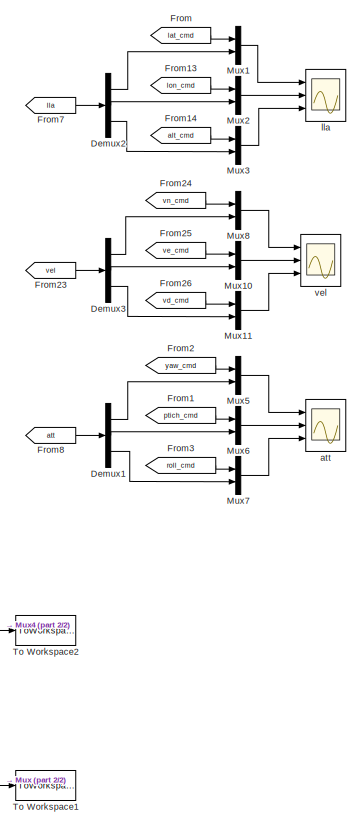
[diagram: root canvas - part 1/2, right side, full height]
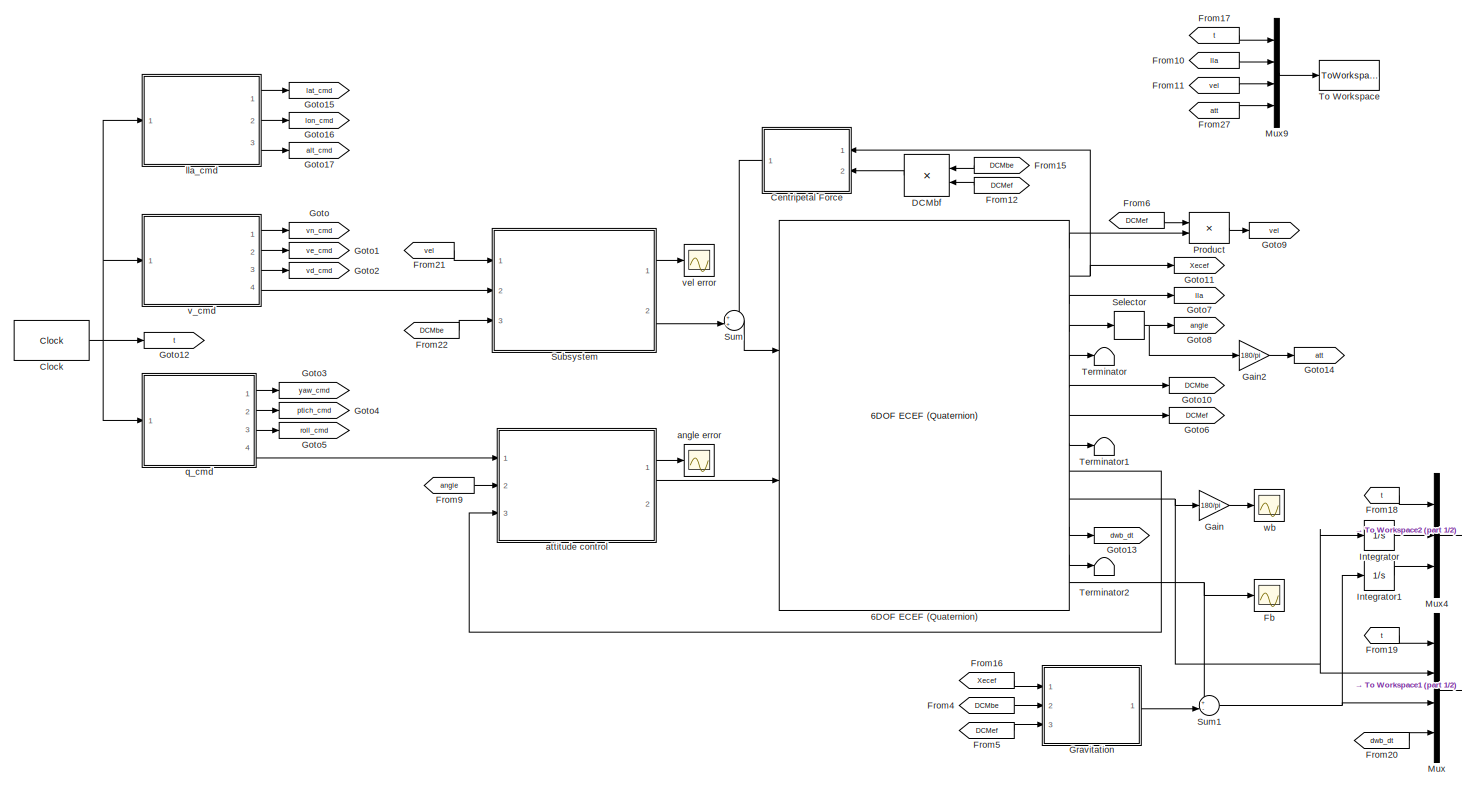
[diagram: root canvas - part 2/2, most of the canvas]
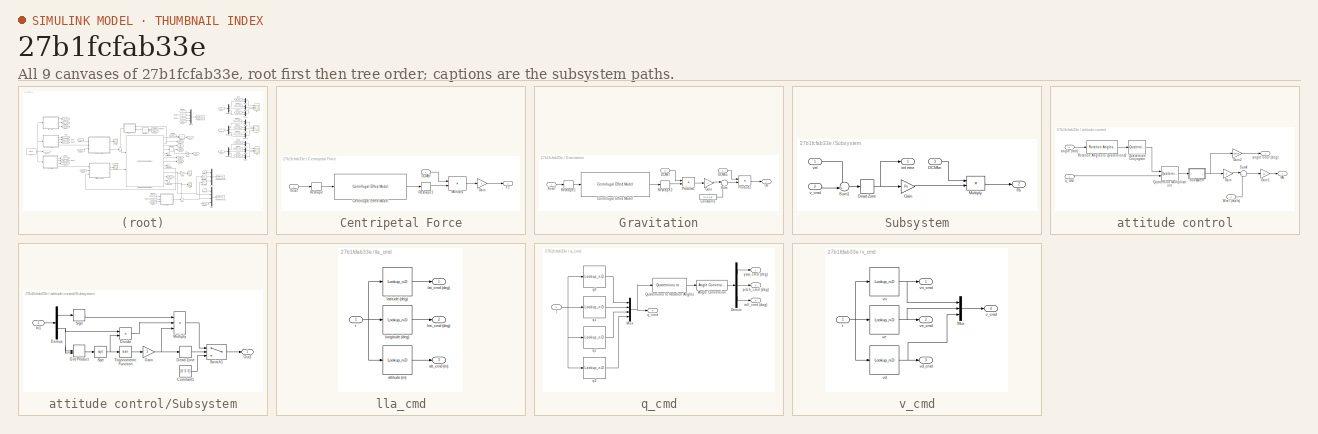
[diagram: thumbnail index - all 9 canvases of the model, root first then tree order]
MODEL slx_27b1fcfab33e
KIND model
CONFIG AbsTol = auto
CONFIG EnableMultiTasking = off
CONFIG FixedStep = dt_solve
CONFIG MaxStep = auto
CONFIG MinStep = auto
CONFIG RelTol = 1e-3
CONFIG SampleTimeConstraint = Unconstrained
CONFIG Solver = ode4
CONFIG SolverName = ode4
CONFIG StartTime = 0.0
CONFIG StopFcn = for k=2:size(imu_delta,1)\nimu_delta(k-1,2:7) = imu_delta(k,2:7)-imu_delta(k-1,2:7);\nend\nimu_delta(1:end-1,1) = imu_delta(2:end,1);\nimu_delta(end,:) = [];\nclearvars k\nsave([path,'/traj.mat'], 'traj_m','imu_rate','imu_delta');
CONFIG StopTime = floor(cmd(end,1))
BLOCK [Reference] 6DOF ECEF (Quaternion)  REF=aerolib6dof2/6DOF ECEF (Quaternion)
  Ports = [2, 13]
  SourceBlock = aerolib6dof2/6DOF ECEF (Quaternion)
  SourceProductBaseCode = AE
  SourceProductName = Aerospace Blockset
  SourceType = 6DOF EoM (ECEF)
BLOCK [SubSystem] Centripetal Force
  Ports = [2, 1]
  RequestExecContextInheritance = off
BLOCK [Reference] Centripetal Force/Centrifugal Effect Model  REF=aerolibgravity2/Centrifugal Effect Model
  Ports = [1, 1]
  SourceBlock = aerolibgravity2/Centrifugal Effect Model
  SourceProductBaseCode = AE
  SourceProductName = Aerospace Blockset
  SourceType = Centrifugal Effect Model
BLOCK [Inport] Centripetal Force/DCMbf
  IconDisplay = Port number
  Port = 2
BLOCK [Outport] Centripetal Force/Fc
  IconDisplay = Port number
BLOCK [Gain] Centripetal Force/Gain
  Gain = -1
  OutDataTypeStr = Inherit: Inherit via internal rule
  ParamDataTypeStr = Inherit: Inherit via internal rule
  SaturateOnIntegerOverflow = off
BLOCK [Product] Centripetal Force/Multiply
  InputSameDT = off
  Multiplication = Matrix(*)
  OutDataTypeStr = Inherit: Inherit via internal rule
  Ports = [2, 1]
  RndMeth = Floor
  SaturateOnIntegerOverflow = off
BLOCK [Reshape] Centripetal Force/Reshape
  Ports = [1, 1]
BLOCK [Reshape] Centripetal Force/Reshape1
  Ports = [1, 1]
BLOCK [Inport] Centripetal Force/Xecef
  IconDisplay = Port number
BLOCK [Clock] Clock
  Decimation = 1
  DisplayTime = on
BLOCK [Product] DCMbf
  InputSameDT = off
  Multiplication = Matrix(*)
  OutDataTypeStr = Inherit: Inherit via internal rule
  Ports = [2, 1]
  RndMeth = Floor
  SaturateOnIntegerOverflow = off
BLOCK [Demux] Demux1
  DisplayOption = bar
  Outputs = 3
  Ports = [1, 3]
BLOCK [Demux] Demux2
  DisplayOption = bar
  Outputs = 3
  Ports = [1, 3]
BLOCK [Demux] Demux3
  DisplayOption = bar
  Outputs = 3
  Ports = [1, 3]
BLOCK [Scope] Fb
  Floating = off
  NumInputPorts = 1
  Ports = [1]
  ScopeSpecificationString = Simulink.scopes.TimeScopeBlockCfg('CurrentConfiguration', extmgr.ConfigurationSet(extmgr.Configuration('Core','General UI',true),extmgr.Configuration('Core','Source UI',true),extmgr.Configuration('Sources','WiredSimulink',true,'SampleTime','dt_scope','DataLoggingVariableName','ScopeData3'),extmgr.Configuration('Visuals','Time Domain',true,'SerializedDisplays',{struct('MinYLimReal','-17.9104','MaxY...<+1547ch>
BLOCK [From] From
  GotoTag = lat_cmd
BLOCK [From] From1
  GotoTag = ptich_cmd
BLOCK [From] From10
  GotoTag = lla
BLOCK [From] From11
  GotoTag = vel
BLOCK [From] From12
  GotoTag = DCMef
BLOCK [From] From13
  GotoTag = lon_cmd
BLOCK [From] From14
  GotoTag = alt_cmd
BLOCK [From] From15
  GotoTag = DCMbe
BLOCK [From] From16
  GotoTag = Xecef
BLOCK [From] From17
  GotoTag = t
BLOCK [From] From18
  GotoTag = t
BLOCK [From] From19
  GotoTag = t
BLOCK [From] From2
  GotoTag = yaw_cmd
BLOCK [From] From20
  GotoTag = dwb_dt
BLOCK [From] From21
  GotoTag = vel
BLOCK [From] From22
  GotoTag = DCMbe
BLOCK [From] From23
  GotoTag = vel
BLOCK [From] From24
  GotoTag = vn_cmd
BLOCK [From] From25
  GotoTag = ve_cmd
BLOCK [From] From26
  GotoTag = vd_cmd
BLOCK [From] From27
  GotoTag = att
BLOCK [From] From3
  GotoTag = roll_cmd
BLOCK [From] From4
  GotoTag = DCMbe
BLOCK [From] From5
  GotoTag = DCMef
BLOCK [From] From6
  GotoTag = DCMef
BLOCK [From] From7
  GotoTag = lla
BLOCK [From] From8
  GotoTag = att
BLOCK [From] From9
  GotoTag = angle
BLOCK [Gain] Gain
  Gain = 180/pi
  OutDataTypeStr = Inherit: Inherit via internal rule
  ParamDataTypeStr = Inherit: Inherit via internal rule
  SaturateOnIntegerOverflow = off
BLOCK [Gain] Gain2
  Gain = 180/pi
  OutDataTypeStr = Inherit: Inherit via internal rule
  ParamDataTypeStr = Inherit: Inherit via internal rule
  SaturateOnIntegerOverflow = off
BLOCK [Goto] Goto
  GotoTag = vn_cmd
BLOCK [Goto] Goto1
  GotoTag = ve_cmd
BLOCK [Goto] Goto10
  GotoTag = DCMbe
BLOCK [Goto] Goto11
  GotoTag = Xecef
BLOCK [Goto] Goto12
  GotoTag = t
BLOCK [Goto] Goto13
  GotoTag = dwb_dt
BLOCK [Goto] Goto14
  GotoTag = att
BLOCK [Goto] Goto15
  GotoTag = lat_cmd
BLOCK [Goto] Goto16
  GotoTag = lon_cmd
BLOCK [Goto] Goto17
  GotoTag = alt_cmd
BLOCK [Goto] Goto2
  GotoTag = vd_cmd
BLOCK [Goto] Goto3
  GotoTag = yaw_cmd
BLOCK [Goto] Goto4
  GotoTag = ptich_cmd
BLOCK [Goto] Goto5
  GotoTag = roll_cmd
BLOCK [Goto] Goto6
  GotoTag = DCMef
BLOCK [Goto] Goto7
  GotoTag = lla
BLOCK [Goto] Goto8
  GotoTag = angle
BLOCK [Goto] Goto9
  GotoTag = vel
BLOCK [SubSystem] Gravitation
  Ports = [3, 1]
  RequestExecContextInheritance = off
BLOCK [Reference] Gravitation/Centrifugal Effect Model  REF=aerolibgravity2/Centrifugal Effect Model
  Ports = [1, 1]
  SourceBlock = aerolibgravity2/Centrifugal Effect Model
  SourceProductBaseCode = AE
  SourceProductName = Aerospace Blockset
  SourceType = Centrifugal Effect Model
BLOCK [Constant] Gravitation/Constant3
  Value = [0 0 9.8]
BLOCK [Inport] Gravitation/DCMbe
  IconDisplay = Port number
  Port = 2
BLOCK [Inport] Gravitation/DCMef
  IconDisplay = Port number
  Port = 3
BLOCK [Gain] Gravitation/Gain
  Gain = -1
  OutDataTypeStr = Inherit: Inherit via internal rule
  ParamDataTypeStr = Inherit: Inherit via internal rule
  SaturateOnIntegerOverflow = off
BLOCK [Outport] Gravitation/Gb
  IconDisplay = Port number
BLOCK [Product] Gravitation/Product1
  InputSameDT = off
  Multiplication = Matrix(*)
  OutDataTypeStr = Inherit: Inherit via internal rule
  Ports = [2, 1]
  RndMeth = Floor
  SaturateOnIntegerOverflow = off
BLOCK [Product] Gravitation/Product2
  InputSameDT = off
  Multiplication = Matrix(*)
  OutDataTypeStr = Inherit: Inherit via internal rule
  Ports = [2, 1]
  RndMeth = Floor
  SaturateOnIntegerOverflow = off
BLOCK [Reshape] Gravitation/Reshape1
  Ports = [1, 1]
BLOCK [Reshape] Gravitation/Reshape2
  Ports = [1, 1]
BLOCK [Sum] Gravitation/Sum
  IconShape = round
  InputSameDT = off
  Inputs = |++
  OutDataTypeStr = Inherit: Inherit via internal rule
  Ports = [2, 1]
  SaturateOnIntegerOverflow = off
BLOCK [Inport] Gravitation/Xecef
  IconDisplay = Port number
BLOCK [Integrator] Integrator
  Ports = [1, 1]
BLOCK [Integrator] Integrator1
  Ports = [1, 1]
BLOCK [Mux] Mux
  DisplayOption = bar
  Ports = [4, 1]
BLOCK [Mux] Mux1
  DisplayOption = bar
  Inputs = 2
  Ports = [2, 1]
BLOCK [Mux] Mux10
  DisplayOption = bar
  Inputs = 2
  Ports = [2, 1]
BLOCK [Mux] Mux11
  DisplayOption = bar
  Inputs = 2
  Ports = [2, 1]
BLOCK [Mux] Mux2
  DisplayOption = bar
  Inputs = 2
  Ports = [2, 1]
BLOCK [Mux] Mux3
  DisplayOption = bar
  Inputs = 2
  Ports = [2, 1]
BLOCK [Mux] Mux4
  DisplayOption = bar
  Inputs = 3
  Ports = [3, 1]
BLOCK [Mux] Mux5
  DisplayOption = bar
  Inputs = 2
  Ports = [2, 1]
BLOCK [Mux] Mux6
  DisplayOption = bar
  Inputs = 2
  Ports = [2, 1]
BLOCK [Mux] Mux7
  DisplayOption = bar
  Inputs = 2
  Ports = [2, 1]
BLOCK [Mux] Mux8
  DisplayOption = bar
  Inputs = 2
  Ports = [2, 1]
BLOCK [Mux] Mux9
  DisplayOption = bar
  Ports = [4, 1]
BLOCK [Product] Product
  InputSameDT = off
  Multiplication = Matrix(*)
  OutDataTypeStr = Inherit: Inherit via internal rule
  Ports = [2, 1]
  RndMeth = Floor
  SaturateOnIntegerOverflow = off
BLOCK [Selector] Selector
  IndexOptions = Index vector (dialog)
  Indices = [3 2 1]
  InputPortWidth = 3
  OutputSizes = 1
  Ports = [1, 1]
BLOCK [SubSystem] Subsystem
  Ports = [3, 2]
  RequestExecContextInheritance = off
BLOCK [Inport] Subsystem/DCMbe
  IconDisplay = Port number
  Port = 3
BLOCK [DeadZone] Subsystem/Dead Zone
  LowerValue = -0.02
  UpperValue = 0.02
BLOCK [Outport] Subsystem/Fb
  IconDisplay = Port number
  Port = 2
BLOCK [Gain] Subsystem/Gain
  Gain = Pv
  OutDataTypeStr = Inherit: Inherit via internal rule
  ParamDataTypeStr = Inherit: Inherit via internal rule
  SaturateOnIntegerOverflow = off
BLOCK [Product] Subsystem/Multiply
  InputSameDT = off
  Multiplication = Matrix(*)
  OutDataTypeStr = Inherit: Inherit via internal rule
  Ports = [2, 1]
  RndMeth = Floor
  SaturateOnIntegerOverflow = off
BLOCK [Sum] Subsystem/Sum1
  IconShape = round
  InputSameDT = off
  Inputs = -+|
  OutDataTypeStr = Inherit: Inherit via internal rule
  Ports = [2, 1]
  SaturateOnIntegerOverflow = off
BLOCK [Inport] Subsystem/v_cmd
  IconDisplay = Port number
  Port = 2
BLOCK [Inport] Subsystem/vel
  IconDisplay = Port number
BLOCK [Outport] Subsystem/vel error
  IconDisplay = Port number
BLOCK [Sum] Sum
  IconShape = round
  InputSameDT = off
  Inputs = ++|
  OutDataTypeStr = Inherit: Inherit via internal rule
  Ports = [2, 1]
  SaturateOnIntegerOverflow = off
BLOCK [Sum] Sum1
  IconShape = round
  InputSameDT = off
  Inputs = +-|
  OutDataTypeStr = Inherit: Inherit via internal rule
  Ports = [2, 1]
  SaturateOnIntegerOverflow = off
BLOCK [Terminator] Terminator
BLOCK [Terminator] Terminator1
BLOCK [Terminator] Terminator2
BLOCK [ToWorkspace] To Workspace
  Decimation = dt_traj/dt_solve
  FixptAsFi = on
  MaxDataPoints = inf
  Ports = [1]
  SampleTime = -1
  Save2DSignal = 3-D array (concatenate along third dimension)
  VariableName = traj_m
BLOCK [ToWorkspace] To Workspace1
  Decimation = dt_imu_rate/dt_solve
  FixptAsFi = on
  MaxDataPoints = inf
  Ports = [1]
  SampleTime = -1
  Save2DSignal = 3-D array (concatenate along third dimension)
  VariableName = imu_rate
BLOCK [ToWorkspace] To Workspace2
  Decimation = dt_imu_delta/dt_solve
  FixptAsFi = on
  MaxDataPoints = inf
  Ports = [1]
  SampleTime = -1
  Save2DSignal = 3-D array (concatenate along third dimension)
  VariableName = imu_delta
BLOCK [Scope] angle error
  Floating = off
  NumInputPorts = 1
  Ports = [1]
  ScopeSpecificationString = Simulink.scopes.TimeScopeBlockCfg('CurrentConfiguration', extmgr.ConfigurationSet(extmgr.Configuration('Core','General UI',true),extmgr.Configuration('Core','Source UI',true),extmgr.Configuration('Sources','WiredSimulink',true,'SampleTime','dt_scope','DataLoggingVariableName','ScopeData1'),extmgr.Configuration('Visuals','Time Domain',true,'SerializedDisplays',{struct('MinYLimReal','-26.31739','Max...<+1528ch>
BLOCK [Scope] att
  Floating = off
  NumInputPorts = 3
  Ports = [3]
  ScopeSpecificationString = Simulink.scopes.TimeScopeBlockCfg('CurrentConfiguration', extmgr.ConfigurationSet(extmgr.Configuration('Core','General UI',true),extmgr.Configuration('Core','Source UI',true),extmgr.Configuration('Sources','WiredSimulink',true,'DataLoggingVariableName','ScopeData1','SampleTime','dt_scope'),extmgr.Configuration('Visuals','Time Domain',true,'SerializedDisplays',{struct('MinYLimReal','-14.48356','Max...<+2789ch>
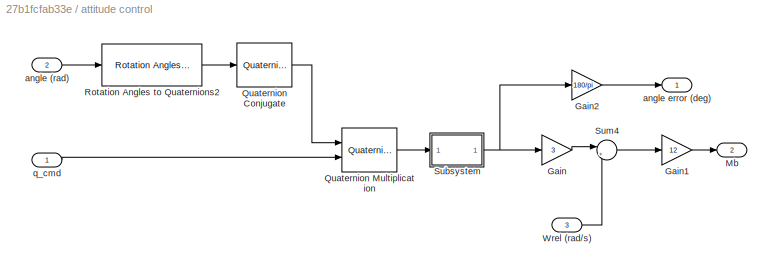
BLOCK [SubSystem] attitude control
  Ports = [3, 2]
  RequestExecContextInheritance = off
BLOCK [Gain] attitude control/Gain
  Gain = 3
  OutDataTypeStr = Inherit: Inherit via internal rule
  ParamDataTypeStr = Inherit: Inherit via internal rule
  SaturateOnIntegerOverflow = off
BLOCK [Gain] attitude control/Gain1
  Gain = 12
  OutDataTypeStr = Inherit: Inherit via internal rule
  ParamDataTypeStr = Inherit: Inherit via internal rule
  SaturateOnIntegerOverflow = off
BLOCK [Gain] attitude control/Gain2
  Gain = 180/pi
  OutDataTypeStr = Inherit: Inherit via internal rule
  ParamDataTypeStr = Inherit: Inherit via internal rule
  SaturateOnIntegerOverflow = off
BLOCK [Outport] attitude control/Mb
  IconDisplay = Port number
  Port = 2
BLOCK [Reference] attitude control/Quaternion Conjugate  REF=aerolibutil/Quaternion
Conjugate
  Ports = [1, 1]
  SourceBlock = aerolibutil/Quaternion\nConjugate
  SourceProductBaseCode = AE
  SourceProductName = Aerospace Blockset
  SourceType = Quaternion Conjugate
BLOCK [Reference] attitude control/Quaternion Multiplication  REF=aerolibutil/Quaternion
Multiplication
  Ports = [2, 1]
  SourceBlock = aerolibutil/Quaternion\nMultiplication
  SourceProductBaseCode = AE
  SourceProductName = Aerospace Blockset
  SourceType = Quaternion Multiplication
BLOCK [Reference] attitude control/Rotation Angles to Quaternions2  REF=sharedtransform/Rotation Angles to Quaternions
  AttributesFormatString = Rotation Order: %<rotationOrder>
  Ports = [1, 1]
  SourceBlock = sharedtransform/Rotation Angles to Quaternions
  SourceProductBaseCode = AE
  SourceProductName = Aerospace Blockset
  SourceType = Ang2Quat
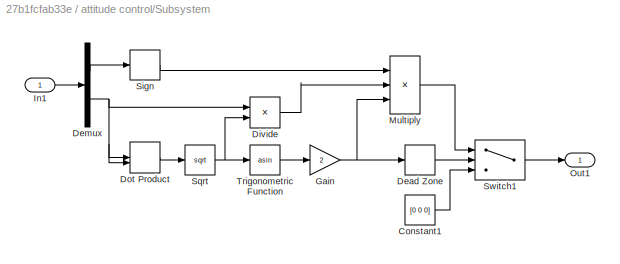
BLOCK [SubSystem] attitude control/Subsystem
  Ports = [1, 1]
  RequestExecContextInheritance = off
BLOCK [Constant] attitude control/Subsystem/Constant1
  Value = [0 0 0]
BLOCK [DeadZone] attitude control/Subsystem/Dead Zone
  LowerValue = -0.01/180*pi
  UpperValue = 0.01/180*pi
BLOCK [Demux] attitude control/Subsystem/Demux
  DisplayOption = bar
  Outputs = [1 3]
  Ports = [1, 2]
BLOCK [Product] attitude control/Subsystem/Divide
  InputSameDT = off
  Inputs = */
  OutDataTypeStr = Inherit: Inherit via internal rule
  Ports = [2, 1]
  RndMeth = Floor
  SaturateOnIntegerOverflow = off
BLOCK [DotProduct] attitude control/Subsystem/Dot Product
  OutDataTypeStr = Inherit: Inherit via internal rule
BLOCK [Gain] attitude control/Subsystem/Gain
  Gain = 2
  OutDataTypeStr = Inherit: Inherit via internal rule
  ParamDataTypeStr = Inherit: Inherit via internal rule
  SaturateOnIntegerOverflow = off
BLOCK [Inport] attitude control/Subsystem/In1
  IconDisplay = Port number
BLOCK [Product] attitude control/Subsystem/Multiply
  InputSameDT = off
  Inputs = 3
  OutDataTypeStr = Inherit: Inherit via internal rule
  Ports = [3, 1]
  RndMeth = Floor
  SaturateOnIntegerOverflow = off
BLOCK [Outport] attitude control/Subsystem/Out1
  IconDisplay = Port number
BLOCK [Signum] attitude control/Subsystem/Sign
BLOCK [Sqrt] attitude control/Subsystem/Sqrt
BLOCK [Switch] attitude control/Subsystem/Switch1
  Criteria = u2 ~= 0
  InputSameDT = off
  SaturateOnIntegerOverflow = off
BLOCK [Trigonometry] attitude control/Subsystem/Trigonometric Function
  Operator = asin
  Ports = [1, 1]
BLOCK [Sum] attitude control/Sum4
  IconShape = round
  InputSameDT = off
  Inputs = |+-
  OutDataTypeStr = Inherit: Inherit via internal rule
  Ports = [2, 1]
  SaturateOnIntegerOverflow = off
BLOCK [Inport] attitude control/Wrel (rad//s)
  IconDisplay = Port number
  Port = 3
BLOCK [Inport] attitude control/angle (rad)
  IconDisplay = Port number
  Port = 2
BLOCK [Outport] attitude control/angle error (deg)
  IconDisplay = Port number
BLOCK [Inport] attitude control/q_cmd
  IconDisplay = Port number
BLOCK [Scope] lla
  Floating = off
  NumInputPorts = 3
  Ports = [3]
  ScopeSpecificationString = Simulink.scopes.TimeScopeBlockCfg('CurrentConfiguration', extmgr.ConfigurationSet(extmgr.Configuration('Core','General UI',true),extmgr.Configuration('Core','Source UI',true),extmgr.Configuration('Sources','WiredSimulink',true,'DataLoggingVariableName','ScopeData1','SampleTime','dt_scope'),extmgr.Configuration('Visuals','Time Domain',true,'SerializedDisplays',{struct('MinYLimReal','40.01197','MaxY...<+2800ch>
BLOCK [SubSystem] lla_cmd
  Ports = [1, 3]
  RequestExecContextInheritance = off
BLOCK [Outport] lla_cmd/alt_cmd (m)
  IconDisplay = Port number
  Port = 3
BLOCK [Lookup_n-D] lla_cmd/altitude (m)
  BreakpointsForDimension1 = data(:,1)
  ExtrapMethod = Clip
  InternalRulePriority = Speed
  InterpMethod = Cubic spline
  NumberOfTableDimensions = 1
  Ports = [1, 1]
  RndMeth = Simplest
  Table = data(:,4)
BLOCK [Outport] lla_cmd/lat_cmd (deg)
  IconDisplay = Port number
BLOCK [Lookup_n-D] lla_cmd/latitude (deg)
  BreakpointsForDimension1 = data(:,1)
  ExtrapMethod = Clip
  InternalRulePriority = Speed
  InterpMethod = Cubic spline
  NumberOfTableDimensions = 1
  Ports = [1, 1]
  RndMeth = Simplest
  Table = data(:,2)
BLOCK [Outport] lla_cmd/lon_cmd (deg)
  IconDisplay = Port number
  Port = 2
BLOCK [Lookup_n-D] lla_cmd/longitude (deg)
  BreakpointsForDimension1 = data(:,1)
  ExtrapMethod = Clip
  InternalRulePriority = Speed
  InterpMethod = Cubic spline
  NumberOfTableDimensions = 1
  Ports = [1, 1]
  RndMeth = Simplest
  Table = data(:,3)
BLOCK [Inport] lla_cmd/t
  IconDisplay = Port number
BLOCK [SubSystem] q_cmd
  Ports = [1, 4]
  RequestExecContextInheritance = off
BLOCK [Reference] q_cmd/Angle Conversion  REF=aerolibconvert2/Angle Conversion
  Ports = [1, 1]
  SourceBlock = aerolibconvert2/Angle Conversion
  SourceProductBaseCode = AE
  SourceProductName = Aerospace Blockset
  SourceType = Angle Conversion
BLOCK [Demux] q_cmd/Demux
  DisplayOption = bar
  Outputs = 3
  Ports = [1, 3]
BLOCK [Mux] q_cmd/Mux
  DisplayOption = bar
  Ports = [4, 1]
BLOCK [Reference] q_cmd/Quaternions to Rotation Angles  REF=sharedtransform/Quaternions to Rotation Angles
  AttributesFormatString = Rotation Order: %<rotationOrder>
  Ports = [1, 1]
  SourceBlock = sharedtransform/Quaternions to Rotation Angles
  SourceProductBaseCode = AE
  SourceProductName = Aerospace Blockset
  SourceType = Quat2Ang
BLOCK [Outport] q_cmd/pitch_cmd (deg)
  IconDisplay = Port number
  Port = 2
BLOCK [Lookup_n-D] q_cmd/q0
  BreakpointsForDimension1 = cmd(:,1)
  ExtrapMethod = Clip
  InternalRulePriority = Speed
  InterpMethod = Cubic spline
  NumberOfTableDimensions = 1
  Ports = [1, 1]
  RndMeth = Simplest
  Table = cmd(:,5)
BLOCK [Lookup_n-D] q_cmd/q1
  BreakpointsForDimension1 = cmd(:,1)
  ExtrapMethod = Clip
  InternalRulePriority = Speed
  InterpMethod = Cubic spline
  NumberOfTableDimensions = 1
  Ports = [1, 1]
  RndMeth = Simplest
  Table = cmd(:,6)
BLOCK [Lookup_n-D] q_cmd/q2
  BreakpointsForDimension1 = cmd(:,1)
  ExtrapMethod = Clip
  InternalRulePriority = Speed
  InterpMethod = Cubic spline
  NumberOfTableDimensions = 1
  Ports = [1, 1]
  RndMeth = Simplest
  Table = cmd(:,7)
BLOCK [Lookup_n-D] q_cmd/q3
  BreakpointsForDimension1 = cmd(:,1)
  ExtrapMethod = Clip
  InternalRulePriority = Speed
  InterpMethod = Cubic spline
  NumberOfTableDimensions = 1
  Ports = [1, 1]
  RndMeth = Simplest
  Table = cmd(:,8)
BLOCK [Outport] q_cmd/q_cmd
  IconDisplay = Port number
  Port = 4
BLOCK [Outport] q_cmd/roll_cmd (deg)
  IconDisplay = Port number
  Port = 3
BLOCK [Inport] q_cmd/t
  IconDisplay = Port number
BLOCK [Outport] q_cmd/yaw_cmd (deg)
  IconDisplay = Port number
BLOCK [SubSystem] v_cmd
  Ports = [1, 4]
  RequestExecContextInheritance = off
BLOCK [Mux] v_cmd/Mux
  DisplayOption = bar
  Inputs = 3
  Ports = [3, 1]
BLOCK [Inport] v_cmd/t
  IconDisplay = Port number
BLOCK [Outport] v_cmd/v_cmd
  IconDisplay = Port number
  Port = 4
BLOCK [Lookup_n-D] v_cmd/vd
  BreakpointsForDimension1 = cmd(:,1)
  ExtrapMethod = Clip
  InternalRulePriority = Speed
  InterpMethod = Cubic spline
  NumberOfTableDimensions = 1
  Ports = [1, 1]
  RndMeth = Simplest
  Table = cmd(:,4)
BLOCK [Outport] v_cmd/vd_cmd
  IconDisplay = Port number
  Port = 3
BLOCK [Lookup_n-D] v_cmd/ve
  BreakpointsForDimension1 = cmd(:,1)
  ExtrapMethod = Clip
  InternalRulePriority = Speed
  InterpMethod = Cubic spline
  NumberOfTableDimensions = 1
  Ports = [1, 1]
  RndMeth = Simplest
  Table = cmd(:,3)
BLOCK [Outport] v_cmd/ve_cmd
  IconDisplay = Port number
  Port = 2
BLOCK [Lookup_n-D] v_cmd/vn
  BreakpointsForDimension1 = cmd(:,1)
  ExtrapMethod = Clip
  InternalRulePriority = Speed
  InterpMethod = Cubic spline
  NumberOfTableDimensions = 1
  Ports = [1, 1]
  RndMeth = Simplest
  Table = cmd(:,2)
BLOCK [Outport] v_cmd/vn_cmd
  IconDisplay = Port number
BLOCK [Scope] vel
  Floating = off
  NumInputPorts = 3
  Ports = [3]
  ScopeSpecificationString = Simulink.scopes.TimeScopeBlockCfg('CurrentConfiguration', extmgr.ConfigurationSet(extmgr.Configuration('Core','General UI',true),extmgr.Configuration('Core','Source UI',true),extmgr.Configuration('Sources','WiredSimulink',true,'DataLoggingVariableName','ScopeData1','SampleTime','dt_scope'),extmgr.Configuration('Visuals','Time Domain',true,'SerializedDisplays',{struct('MinYLimReal','-25.8553','MaxY...<+2791ch>
BLOCK [Scope] vel error
  Floating = off
  NumInputPorts = 1
  Ports = [1]
  ScopeSpecificationString = Simulink.scopes.TimeScopeBlockCfg('CurrentConfiguration', extmgr.ConfigurationSet(extmgr.Configuration('Core','General UI',true),extmgr.Configuration('Core','Source UI',true),extmgr.Configuration('Sources','WiredSimulink',true,'SampleTime','dt_scope'),extmgr.Configuration('Visuals','Time Domain',true,'SerializedDisplays',{struct('MinYLimReal','-120.9015','MaxYLimReal','128.53399','YLabelReal','','...<+1474ch>
BLOCK [Scope] wb
  Floating = off
  NumInputPorts = 1
  Ports = [1]
  ScopeSpecificationString = Simulink.scopes.TimeScopeBlockCfg('CurrentConfiguration', extmgr.ConfigurationSet(extmgr.Configuration('Core','General UI',true),extmgr.Configuration('Core','Source UI',true),extmgr.Configuration('Sources','WiredSimulink',true,'SampleTime','dt_scope','DataLoggingVariableName','ScopeData2'),extmgr.Configuration('Visuals','Time Domain',true,'SerializedDisplays',{struct('MinYLimReal','-77.89414','Max...<+1486ch>
LINE 6DOF ECEF (Quaternion):1 -> Product:2
NET 6DOF ECEF (Quaternion):10 -> Gain:1, Integrator:1, Mux:2
LINE 6DOF ECEF (Quaternion):11 -> Goto13:1
LINE 6DOF ECEF (Quaternion):12 -> Terminator2:1
NET 6DOF ECEF (Quaternion):13 -> Fb:1, Sum1:1
NET 6DOF ECEF (Quaternion):2 -> Centripetal Force:1, Goto11:1
LINE 6DOF ECEF (Quaternion):3 -> Goto7:1
LINE 6DOF ECEF (Quaternion):4 -> Selector:1
LINE 6DOF ECEF (Quaternion):5 -> Terminator:1
LINE 6DOF ECEF (Quaternion):6 -> Goto10:1
LINE 6DOF ECEF (Quaternion):7 -> Goto6:1
LINE 6DOF ECEF (Quaternion):8 -> Terminator1:1
LINE 6DOF ECEF (Quaternion):9 -> attitude control:3
LINE Centripetal Force/Centrifugal Effect Model:1 -> Centripetal Force/Reshape1:1
LINE Centripetal Force/DCMbf:1 -> Centripetal Force/Multiply:1
LINE Centripetal Force/Gain:1 -> Centripetal Force/Fc:1
LINE Centripetal Force/Multiply:1 -> Centripetal Force/Gain:1
LINE Centripetal Force/Reshape1:1 -> Centripetal Force/Multiply:2
LINE Centripetal Force/Reshape:1 -> Centripetal Force/Centrifugal Effect Model:1
LINE Centripetal Force/Xecef:1 -> Centripetal Force/Reshape:1
LINE Centripetal Force:1 -> Sum:1
NET Clock:1 -> Goto12:1, lla_cmd:1, q_cmd:1, v_cmd:1
LINE DCMbf:1 -> Centripetal Force:2
LINE Demux1:1 -> Mux5:2
LINE Demux1:2 -> Mux6:2
LINE Demux1:3 -> Mux7:2
LINE Demux2:1 -> Mux1:2
LINE Demux2:2 -> Mux2:2
LINE Demux2:3 -> Mux3:2
LINE Demux3:1 -> Mux8:2
LINE Demux3:2 -> Mux10:2
LINE Demux3:3 -> Mux11:2
LINE From10:1 -> Mux9:2
LINE From11:1 -> Mux9:3
LINE From12:1 -> DCMbf:2
LINE From13:1 -> Mux2:1
LINE From14:1 -> Mux3:1
LINE From15:1 -> DCMbf:1
LINE From16:1 -> Gravitation:1
LINE From17:1 -> Mux9:1
LINE From18:1 -> Mux4:1
LINE From19:1 -> Mux:1
LINE From1:1 -> Mux6:1
LINE From20:1 -> Mux:4
LINE From21:1 -> Subsystem:1
LINE From22:1 -> Subsystem:3
LINE From23:1 -> Demux3:1
LINE From24:1 -> Mux8:1
LINE From25:1 -> Mux10:1
LINE From26:1 -> Mux11:1
LINE From27:1 -> Mux9:4
LINE From2:1 -> Mux5:1
LINE From3:1 -> Mux7:1
LINE From4:1 -> Gravitation:2
LINE From5:1 -> Gravitation:3
LINE From6:1 -> Product:1
LINE From7:1 -> Demux2:1
LINE From8:1 -> Demux1:1
LINE From9:1 -> attitude control:2
LINE From:1 -> Mux1:1
LINE Gain2:1 -> Goto14:1
LINE Gain:1 -> wb:1
LINE Gravitation/Centrifugal Effect Model:1 -> Gravitation/Reshape2:1
LINE Gravitation/Constant3:1 -> Gravitation/Sum:2
LINE Gravitation/DCMbe:1 -> Gravitation/Product2:1
LINE Gravitation/DCMef:1 -> Gravitation/Product1:1
LINE Gravitation/Gain:1 -> Gravitation/Sum:1
LINE Gravitation/Product1:1 -> Gravitation/Gain:1
LINE Gravitation/Product2:1 -> Gravitation/Gb:1
LINE Gravitation/Reshape1:1 -> Gravitation/Centrifugal Effect Model:1
LINE Gravitation/Reshape2:1 -> Gravitation/Product1:2
LINE Gravitation/Sum:1 -> Gravitation/Product2:2
LINE Gravitation/Xecef:1 -> Gravitation/Reshape1:1
LINE Gravitation:1 -> Sum1:2
LINE Integrator1:1 -> Mux4:3
LINE Integrator:1 -> Mux4:2
LINE Mux10:1 -> vel:2
LINE Mux11:1 -> vel:3
LINE Mux1:1 -> lla:1
LINE Mux2:1 -> lla:2
LINE Mux3:1 -> lla:3
LINE Mux4:1 -> To Workspace2:1
LINE Mux5:1 -> att:1
LINE Mux6:1 -> att:2
LINE Mux7:1 -> att:3
LINE Mux8:1 -> vel:1
LINE Mux9:1 -> To Workspace:1
LINE Mux:1 -> To Workspace1:1
LINE Product:1 -> Goto9:1
NET Selector:1 -> Gain2:1, Goto8:1
LINE Subsystem/DCMbe:1 -> Subsystem/Multiply:1
NET Subsystem/Dead Zone:1 -> Subsystem/Gain:1, Subsystem/vel error:1
LINE Subsystem/Gain:1 -> Subsystem/Multiply:2
LINE Subsystem/Multiply:1 -> Subsystem/Fb:1
LINE Subsystem/Sum1:1 -> Subsystem/Dead Zone:1
LINE Subsystem/v_cmd:1 -> Subsystem/Sum1:2
LINE Subsystem/vel:1 -> Subsystem/Sum1:1
LINE Subsystem:1 -> vel error:1
LINE Subsystem:2 -> Sum:2
NET Sum1:1 -> Integrator1:1, Mux:3
LINE Sum:1 -> 6DOF ECEF (Quaternion):1
LINE attitude control/Gain1:1 -> attitude control/Mb:1
LINE attitude control/Gain2:1 -> attitude control/angle error (deg):1
LINE attitude control/Gain:1 -> attitude control/Sum4:1
LINE attitude control/Quaternion Conjugate:1 -> attitude control/Quaternion Multiplication:1
LINE attitude control/Quaternion Multiplication:1 -> attitude control/Subsystem:1
LINE attitude control/Rotation Angles to Quaternions2:1 -> attitude control/Quaternion Conjugate:1
LINE attitude control/Subsystem/Constant1:1 -> attitude control/Subsystem/Switch1:3
LINE attitude control/Subsystem/Dead Zone:1 -> attitude control/Subsystem/Switch1:2
LINE attitude control/Subsystem/Demux:1 -> attitude control/Subsystem/Sign:1
NET attitude control/Subsystem/Demux:2 -> attitude control/Subsystem/Divide:1, attitude control/Subsystem/Dot Product:1, attitude control/Subsystem/Dot Product:2
LINE attitude control/Subsystem/Divide:1 -> attitude control/Subsystem/Multiply:2
LINE attitude control/Subsystem/Dot Product:1 -> attitude control/Subsystem/Sqrt:1
NET attitude control/Subsystem/Gain:1 -> attitude control/Subsystem/Dead Zone:1, attitude control/Subsystem/Multiply:3
LINE attitude control/Subsystem/In1:1 -> attitude control/Subsystem/Demux:1
LINE attitude control/Subsystem/Multiply:1 -> attitude control/Subsystem/Switch1:1
LINE attitude control/Subsystem/Sign:1 -> attitude control/Subsystem/Multiply:1
NET attitude control/Subsystem/Sqrt:1 -> attitude control/Subsystem/Divide:2, attitude control/Subsystem/Trigonometric Function:1
LINE attitude control/Subsystem/Switch1:1 -> attitude control/Subsystem/Out1:1
LINE attitude control/Subsystem/Trigonometric Function:1 -> attitude control/Subsystem/Gain:1
NET attitude control/Subsystem:1 -> attitude control/Gain2:1, attitude control/Gain:1
LINE attitude control/Sum4:1 -> attitude control/Gain1:1
LINE attitude control/Wrel (rad//s):1 -> attitude control/Sum4:2
LINE attitude control/angle (rad):1 -> attitude control/Rotation Angles to Quaternions2:1
LINE attitude control/q_cmd:1 -> attitude control/Quaternion Multiplication:2
LINE attitude control:1 -> angle error:1
LINE attitude control:2 -> 6DOF ECEF (Quaternion):2
LINE lla_cmd/altitude (m):1 -> lla_cmd/alt_cmd (m):1
LINE lla_cmd/latitude (deg):1 -> lla_cmd/lat_cmd (deg):1
LINE lla_cmd/longitude (deg):1 -> lla_cmd/lon_cmd (deg):1
NET lla_cmd/t:1 -> lla_cmd/altitude (m):1, lla_cmd/latitude (deg):1, lla_cmd/longitude (deg):1
LINE lla_cmd:1 -> Goto15:1
LINE lla_cmd:2 -> Goto16:1
LINE lla_cmd:3 -> Goto17:1
LINE q_cmd/Angle Conversion:1 -> q_cmd/Demux:1
LINE q_cmd/Demux:1 -> q_cmd/yaw_cmd (deg):1
LINE q_cmd/Demux:2 -> q_cmd/pitch_cmd (deg):1
LINE q_cmd/Demux:3 -> q_cmd/roll_cmd (deg):1
NET q_cmd/Mux:1 -> q_cmd/Quaternions to Rotation Angles:1, q_cmd/q_cmd:1
LINE q_cmd/Quaternions to Rotation Angles:1 -> q_cmd/Angle Conversion:1
LINE q_cmd/q0:1 -> q_cmd/Mux:1
LINE q_cmd/q1:1 -> q_cmd/Mux:2
LINE q_cmd/q2:1 -> q_cmd/Mux:3
LINE q_cmd/q3:1 -> q_cmd/Mux:4
NET q_cmd/t:1 -> q_cmd/q0:1, q_cmd/q1:1, q_cmd/q2:1, q_cmd/q3:1
LINE q_cmd:1 -> Goto3:1
LINE q_cmd:2 -> Goto4:1
LINE q_cmd:3 -> Goto5:1
LINE q_cmd:4 -> attitude control:1
LINE v_cmd/Mux:1 -> v_cmd/v_cmd:1
NET v_cmd/t:1 -> v_cmd/vd:1, v_cmd/ve:1, v_cmd/vn:1
NET v_cmd/vd:1 -> v_cmd/Mux:3, v_cmd/vd_cmd:1
NET v_cmd/ve:1 -> v_cmd/Mux:2, v_cmd/ve_cmd:1
NET v_cmd/vn:1 -> v_cmd/Mux:1, v_cmd/vn_cmd:1
LINE v_cmd:1 -> Goto:1
LINE v_cmd:2 -> Goto1:1
LINE v_cmd:3 -> Goto2:1
LINE v_cmd:4 -> Subsystem:2
note: NET lines group one-source signal fan-out (src -> all destinations, sorted); 1:1 wires keep LINE
